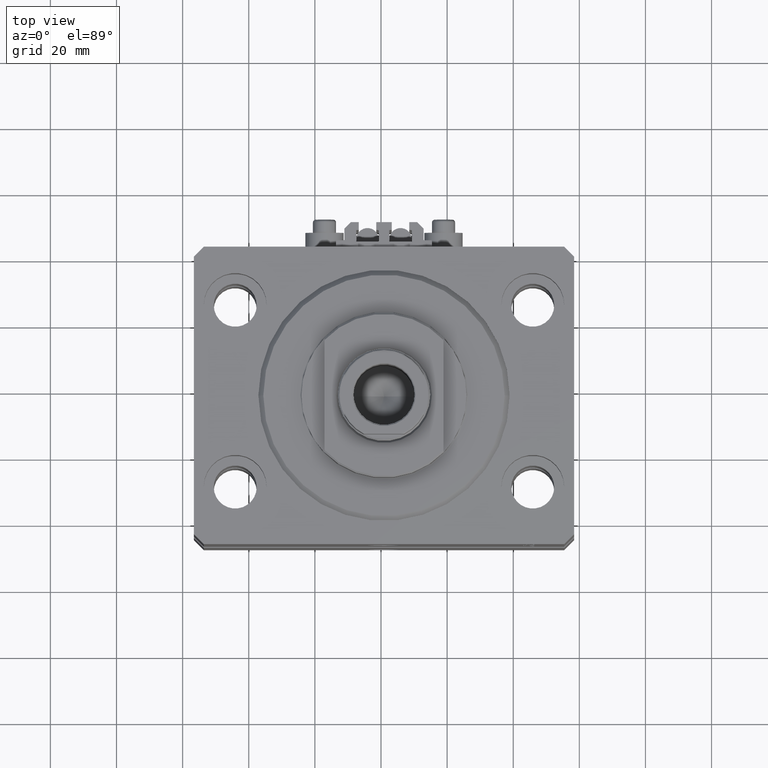
[diagram: clean part render]
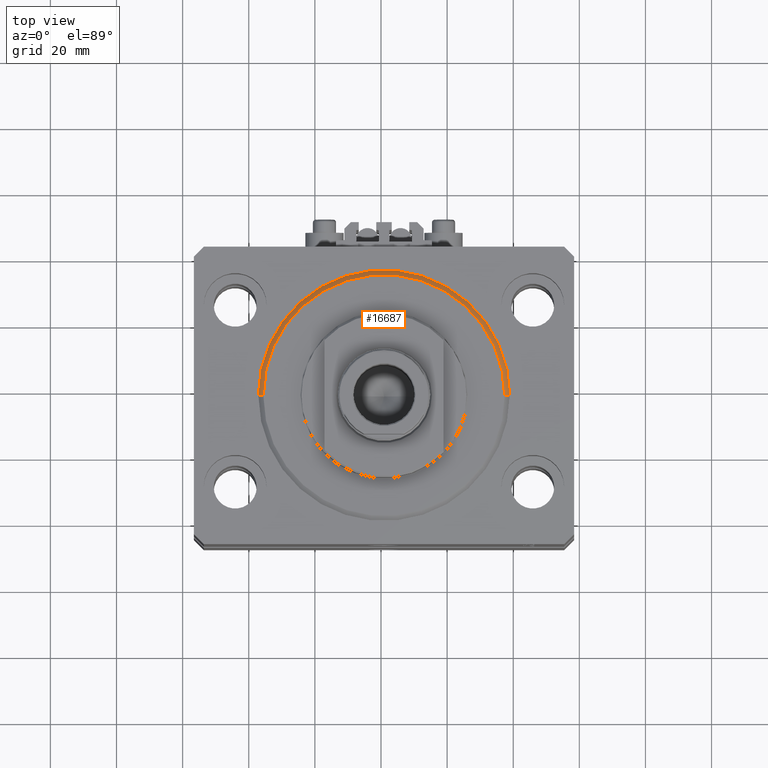
[diagram: same view with one face highlighted and labeled with its STEP entity id]
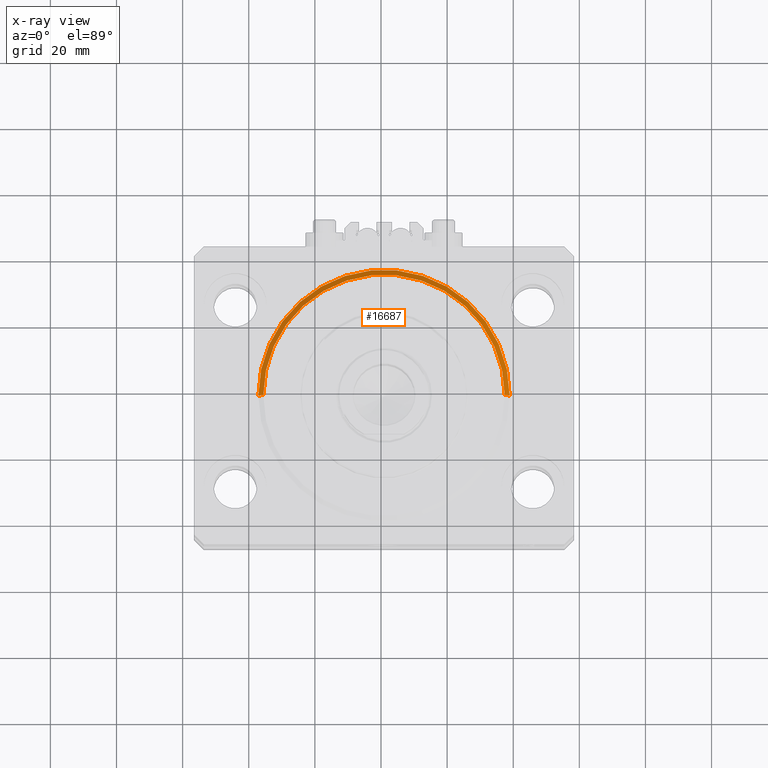
[diagram: x-ray of the same camera — body ghosted, the highlighted face saturated]
A machine part, top view. The second image highlights one B-rep face of the part: STEP entity #16687.
The next image is the same camera in x-ray: the body ghosted, the highlighted face saturated — about 0% of this face is hidden behind the body in this view.
In plain terms, the highlighted conical surface has half-angle 45 deg.
Its self-contained STEP definition (entity closure, byte-faithful):
#19 = CARTESIAN_POINT ( 'NONE',  ( -38.00000000000000000, 4.653657836759941941E-15, 1.499999999999994449 ) ) ;
#1527 = LINE ( 'NONE', #28589, #2673 ) ;
#2673 = VECTOR ( 'NONE', #24781, 1000.000000000000114 ) ;
#3710 = CARTESIAN_POINT ( 'NONE',  ( -36.50000000000000000, 4.561809326823889791E-15, 0.000000000000000000 ) ) ;
#3807 = LINE ( 'NONE', #19, #37913 ) ;
#6433 = ORIENTED_EDGE ( 'NONE', *, *, #21022, .F. ) ;
#8082 = FACE_OUTER_BOUND ( 'NONE', #14934, .T. ) ;
#8338 = CARTESIAN_POINT ( 'NONE',  ( 0.000000000000000000, 0.000000000000000000, 1.499999999999994449 ) ) ;
#10473 = CIRCLE ( 'NONE', #38737, 38.00000000000000000 ) ;
#12243 = CONICAL_SURFACE ( 'NONE', #32428, 38.00000000000000000, 0.7853981633974506105 ) ;
#14934 = EDGE_LOOP ( 'NONE', ( #6433, #29213, #44373, #29752 ) ) ;
#16687 = ADVANCED_FACE ( 'NONE', ( #8082 ), #12243, .T. ) ;
#17583 = CARTESIAN_POINT ( 'NONE',  ( 0.000000000000000000, 0.000000000000000000, 0.000000000000000000 ) ) ;
#21022 = EDGE_CURVE ( 'NONE', #29729, #37143, #43873, .T. ) ;
#21575 = DIRECTION ( 'NONE',  ( -0.7071067811865491270, 8.659560562354953812E-17, 0.7071067811865459074 ) ) ;
#24089 = CARTESIAN_POINT ( 'NONE',  ( 0.000000000000000000, 0.000000000000000000, 1.499999999999994449 ) ) ;
#24110 = EDGE_CURVE ( 'NONE', #37143, #31630, #1527, .T. ) ;
#24781 = DIRECTION ( 'NONE',  ( 0.7071067811865491270, 0.000000000000000000, 0.7071067811865459074 ) ) ;
#28589 = CARTESIAN_POINT ( 'NONE',  ( 38.00000000000000000, 0.000000000000000000, 1.499999999999994449 ) ) ;
#29213 = ORIENTED_EDGE ( 'NONE', *, *, #45577, .T. ) ;
#29729 = VERTEX_POINT ( 'NONE', #3710 ) ;
#29752 = ORIENTED_EDGE ( 'NONE', *, *, #24110, .F. ) ;
#31129 = CARTESIAN_POINT ( 'NONE',  ( -38.00000000000000000, 0.000000000000000000, 1.499999999999994449 ) ) ;
#31630 = VERTEX_POINT ( 'NONE', #42437 ) ;
#32428 = AXIS2_PLACEMENT_3D ( 'NONE', #8338, #46526, #46783 ) ;
#35910 = VERTEX_POINT ( 'NONE', #31129 ) ;
#37143 = VERTEX_POINT ( 'NONE', #44429 ) ;
#37913 = VECTOR ( 'NONE', #21575, 1000.000000000000114 ) ;
#38229 = AXIS2_PLACEMENT_3D ( 'NONE', #17583, #48198, #43911 ) ;
#38737 = AXIS2_PLACEMENT_3D ( 'NONE', #24089, #46604, #49909 ) ;
#42437 = CARTESIAN_POINT ( 'NONE',  ( 38.00000000000000000, 4.653657836759941941E-15, 1.499999999999994449 ) ) ;
#43873 = CIRCLE ( 'NONE', #38229, 36.50000000000000000 ) ;
#43911 = DIRECTION ( 'NONE',  ( 1.000000000000000000, 0.000000000000000000, 0.000000000000000000 ) ) ;
#44373 = ORIENTED_EDGE ( 'NONE', *, *, #46707, .F. ) ;
#44429 = CARTESIAN_POINT ( 'NONE',  ( 36.50000000000000000, 0.000000000000000000, 0.000000000000000000 ) ) ;
#45577 = EDGE_CURVE ( 'NONE', #29729, #35910, #3807, .T. ) ;
#46526 = DIRECTION ( 'NONE',  ( -0.000000000000000000, -0.000000000000000000, 1.000000000000000000 ) ) ;
#46604 = DIRECTION ( 'NONE',  ( -0.000000000000000000, -0.000000000000000000, 1.000000000000000000 ) ) ;
#46707 = EDGE_CURVE ( 'NONE', #31630, #35910, #10473, .T. ) ;
#46783 = DIRECTION ( 'NONE',  ( 1.000000000000000000, 0.000000000000000000, 0.000000000000000000 ) ) ;
#48198 = DIRECTION ( 'NONE',  ( -0.000000000000000000, -0.000000000000000000, -1.000000000000000000 ) ) ;
#49909 = DIRECTION ( 'NONE',  ( 1.000000000000000000, 0.000000000000000000, 0.000000000000000000 ) ) ;